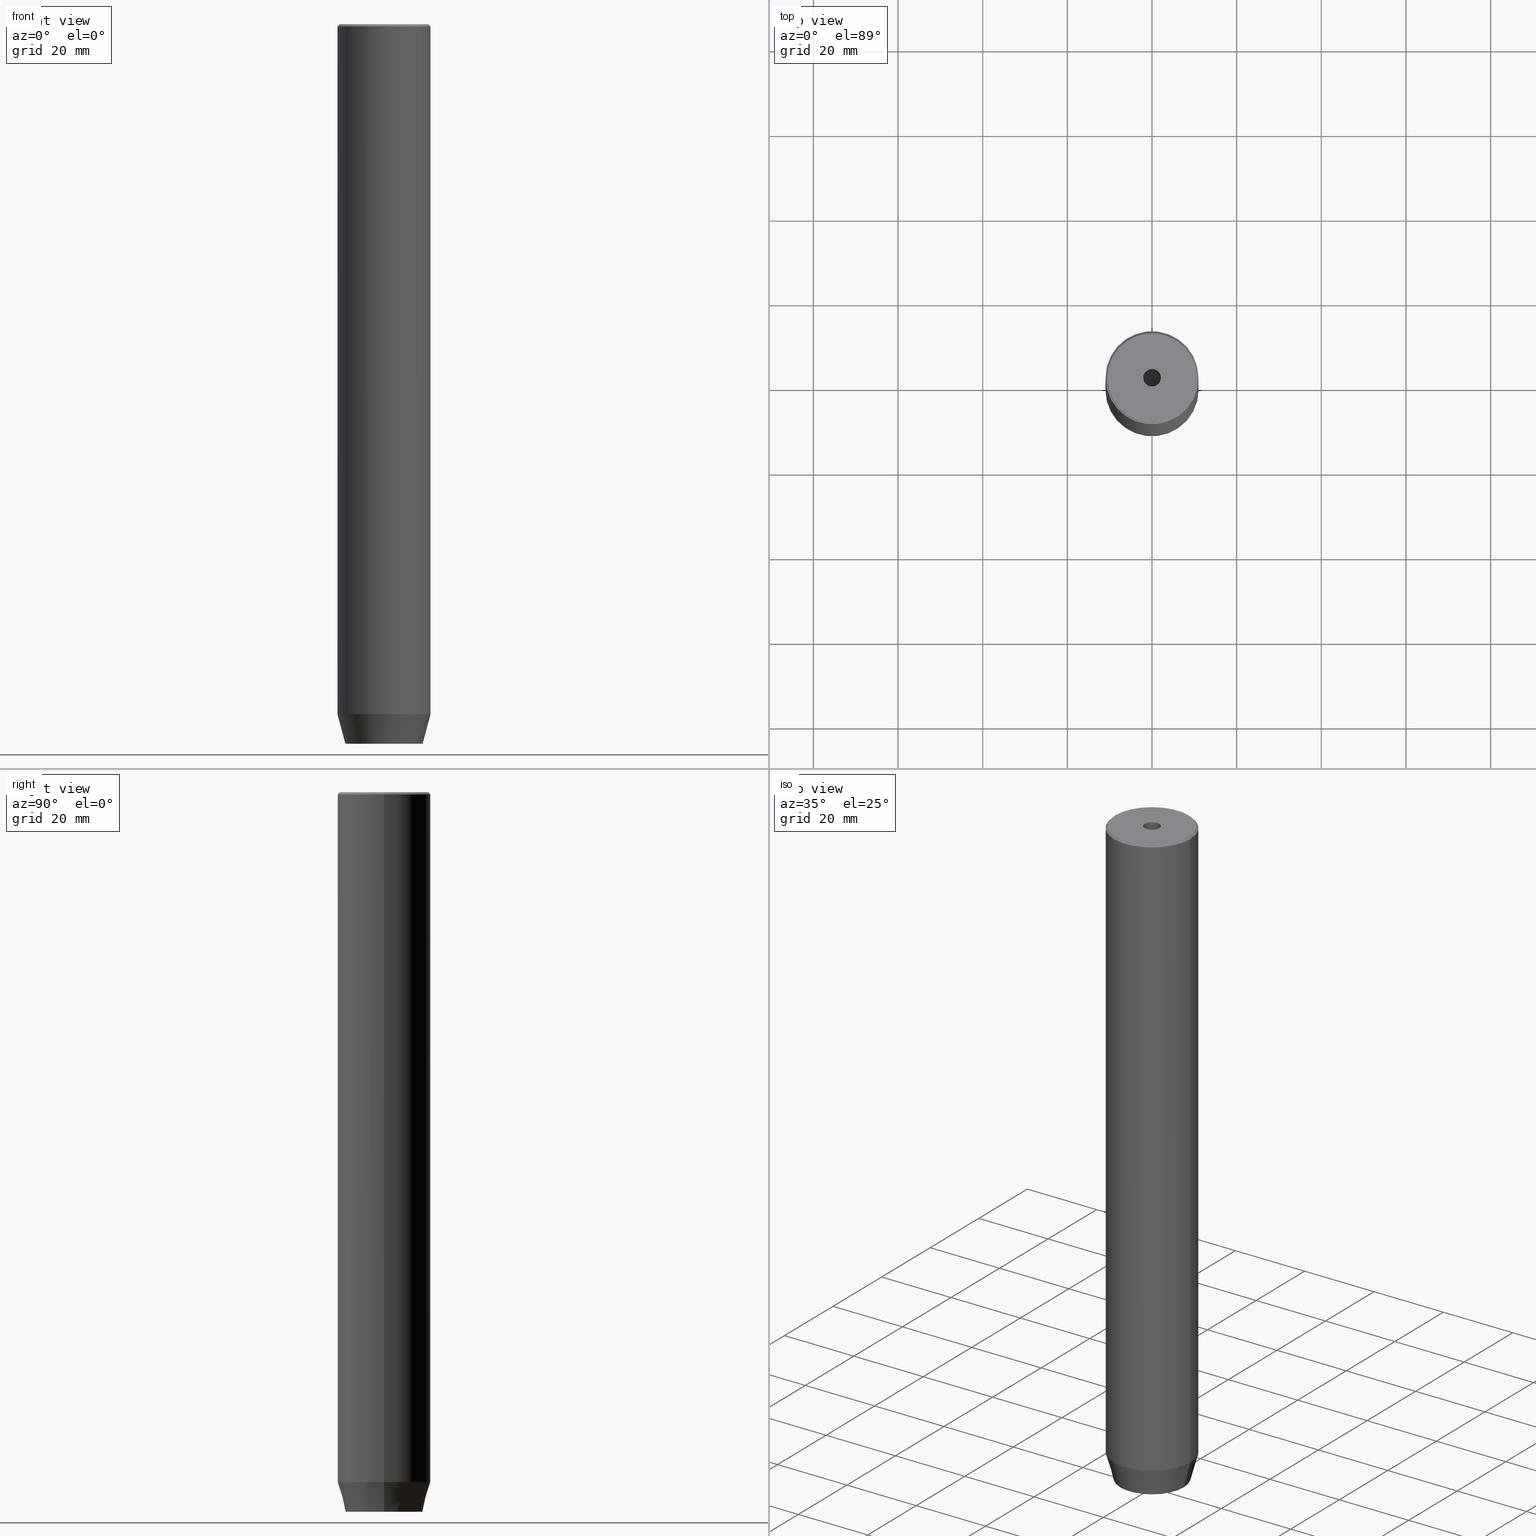
[diagram: canonical four-view strip — front | top / right | iso, engineering-drawing reading convention]
A machine part, canonical four-view strip (front | top / right | iso — engineering-drawing reading convention). The complete STEP part file that produces these views, byte-faithful:
ISO-10303-21;
HEADER;
FILE_DESCRIPTION (( 'STEP AP203' ),
    '1' );
FILE_NAME ('10cb.STEP',
    '2024-01-02T17:18:31',
    ( '' ),
    ( '' ),
    'SwSTEP 2.0',
    'SolidWorks 2019',
    '' );
FILE_SCHEMA (( 'CONFIG_CONTROL_DESIGN' ));
ENDSEC;

DATA;
#1 = ORIENTED_EDGE ( 'NONE', *, *, #455, .F. ) ;
#2 = CARTESIAN_POINT ( 'NONE',  ( 2.000000000000000888, -3.464101615137754386, -167.2000000000000171 ) ) ;
#3 = ORIENTED_EDGE ( 'NONE', *, *, #511, .F. ) ;
#4 = EDGE_CURVE ( 'NONE', #456, #358, #508, .T. ) ;
#5 = FACE_OUTER_BOUND ( 'NONE', #38, .T. ) ;
#6 = CIRCLE ( 'NONE', #297, 11.00000000000000000 ) ;
#7 = LOCAL_TIME ( 18, 18, 31.00000000000000000, #528 ) ;
#8 = DIRECTION ( 'NONE',  ( -0.000000000000000000, -0.000000000000000000, 1.000000000000000000 ) ) ;
#9 = ADVANCED_FACE ( 'NONE', ( #461 ), #48, .T. ) ;
#10 = DIRECTION ( 'NONE',  ( -0.7071067811865302533, 0.000000000000000000, -0.7071067811865647812 ) ) ;
#11 = CARTESIAN_POINT ( 'NONE',  ( 10.50000000000005151, 1.285879139104727141E-15, 0.000000000000000000 ) ) ;
#12 = DIRECTION ( 'NONE',  ( -1.000000000000000000, 0.000000000000000000, -0.000000000000000000 ) ) ;
#13 = VECTOR ( 'NONE', #416, 1000.000000000000114 ) ;
#14 = LINE ( 'NONE', #206, #128 ) ;
#15 = PRODUCT ( '10cb', '10cb', '', ( #467 ) ) ;
#16 = CARTESIAN_POINT ( 'NONE',  ( 2.168404344971008868E-16, 4.618802153517006737, -170.0000000000000000 ) ) ;
#17 = EDGE_CURVE ( 'NONE', #417, #262, #74, .T. ) ;
#18 = EDGE_LOOP ( 'NONE', ( #185, #444, #375, #453 ) ) ;
#19 = FACE_OUTER_BOUND ( 'NONE', #222, .T. ) ;
#20 = PERSON ( 'NEUR�EN�', 'NEUR�EN�', 'NEUR�EN�', ('NEUR�EN�'), ('NEUR�EN�'), ('NEUR�EN�') ) ;
#21 = PRODUCT_RELATED_PRODUCT_CATEGORY ( 'detail', '', ( #15 ) ) ;
#22 = VECTOR ( 'NONE', #236, 1000.000000000000000 ) ;
#23 = AXIS2_PLACEMENT_3D ( 'NONE', #132, #445, #497 ) ;
#24 = ORIENTED_EDGE ( 'NONE', *, *, #314, .F. ) ;
#25 = LINE ( 'NONE', #175, #311 ) ;
#26 = EDGE_CURVE ( 'NONE', #410, #312, #69, .T. ) ;
#27 = VERTEX_POINT ( 'NONE', #341 ) ;
#28 = COORDINATED_UNIVERSAL_TIME_OFFSET ( 1, 0, .AHEAD. ) ;
#29 = APPLICATION_CONTEXT ( 'configuration controlled 3d designs of mechanical parts and assemblies' ) ;
#30 = CARTESIAN_POINT ( 'NONE',  ( 2.099999999999998757, 0.000000000000000000, -1.990051048614449116E-16 ) ) ;
#31 = CARTESIAN_POINT ( 'NONE',  ( -2.099999999999995648, 2.571758278209436040E-16, -25.00000000000000000 ) ) ;
#32 = ORGANIZATION ( 'NEUR�EN�', 'NEUR�EN�', '' ) ;
#33 = FACE_OUTER_BOUND ( 'NONE', #325, .T. ) ;
#34 = ORIENTED_EDGE ( 'NONE', *, *, #409, .T. ) ;
#35 = APPROVAL_STATUS ( 'not_yet_approved' ) ;
#36 = ADVANCED_FACE ( 'NONE', ( #433 ), #333, .F. ) ;
#37 = ORIENTED_EDGE ( 'NONE', *, *, #60, .F. ) ;
#38 = EDGE_LOOP ( 'NONE', ( #400, #131, #214, #343 ) ) ;
#39 = DIRECTION ( 'NONE',  ( 1.000000000000000000, 0.000000000000000000, 0.000000000000000000 ) ) ;
#40 = VECTOR ( 'NONE', #556, 1000.000000000000000 ) ;
#41 = VERTEX_POINT ( 'NONE', #247 ) ;
#42 = LOCAL_TIME ( 18, 18, 31.00000000000000000, #293 ) ;
#43 = DIRECTION ( 'NONE',  ( -0.000000000000000000, -0.000000000000000000, 1.000000000000000000 ) ) ;
#44 = VERTEX_POINT ( 'NONE', #334 ) ;
#45 = EDGE_CURVE ( 'NONE', #277, #207, #162, .T. ) ;
#46 = CARTESIAN_POINT ( 'NONE',  ( 4.336808689942017736E-16, -4.618802153517006737, -170.0000000000000000 ) ) ;
#47 = ORIENTED_EDGE ( 'NONE', *, *, #376, .T. ) ;
#48 = PLANE ( 'NONE',  #502 ) ;
#49 = FACE_OUTER_BOUND ( 'NONE', #87, .T. ) ;
#50 = ORIENTED_EDGE ( 'NONE', *, *, #385, .T. ) ;
#51 = CIRCLE ( 'NONE', #192, 2.099999999999998757 ) ;
#52 = EDGE_CURVE ( 'NONE', #410, #487, #332, .T. ) ;
#53 = CARTESIAN_POINT ( 'NONE',  ( 0.000000000000000000, 9.124355652982126585, -170.0000000000000000 ) ) ;
#54 = DIRECTION ( 'NONE',  ( 0.000000000000000000, 0.000000000000000000, 1.000000000000000000 ) ) ;
#55 = CARTESIAN_POINT ( 'NONE',  ( 4.000000000000000000, 0.000000000000000000, -167.2000000000000171 ) ) ;
#56 = DIRECTION ( 'NONE',  ( 1.000000000000000000, 0.000000000000000000, 0.000000000000000000 ) ) ;
#57 = CARTESIAN_POINT ( 'NONE',  ( 0.000000000000000000, 0.000000000000000000, 0.000000000000000000 ) ) ;
#58 = EDGE_LOOP ( 'NONE', ( #110, #209, #362, #279, #337, #499 ) ) ;
#59 = APPLICATION_PROTOCOL_DEFINITION ( 'international standard', 'config_control_design', 1994, #264 ) ;
#60 = EDGE_CURVE ( 'NONE', #158, #190, #203, .T. ) ;
#61 = FACE_OUTER_BOUND ( 'NONE', #232, .T. ) ;
#62 = EDGE_LOOP ( 'NONE', ( #34, #432, #475, #37 ) ) ;
#63 = DIRECTION ( 'NONE',  ( 0.000000000000000000, 0.000000000000000000, -1.000000000000000000 ) ) ;
#64 = DIRECTION ( 'NONE',  ( -0.000000000000000000, -0.000000000000000000, 1.000000000000000000 ) ) ;
#65 = DIRECTION ( 'NONE',  ( -0.000000000000000000, -0.000000000000000000, -1.000000000000000000 ) ) ;
#66 = CARTESIAN_POINT ( 'NONE',  ( 2.000000000000000444, 3.464101615137754386, -167.2000000000000171 ) ) ;
#67 = VECTOR ( 'NONE', #64, 1000.000000000000000 ) ;
#68 = CC_DESIGN_DATE_AND_TIME_ASSIGNMENT ( #177, #308, ( #225 ) ) ;
#69 = CIRCLE ( 'NONE', #443, 9.124355652982126585 ) ;
#70 = AXIS2_PLACEMENT_3D ( 'NONE', #148, #329, #515 ) ;
#71 = APPROVAL ( #454, 'NEUR�EN�' ) ;
#72 = ORIENTED_EDGE ( 'NONE', *, *, #101, .F. ) ;
#73 = CARTESIAN_POINT ( 'NONE',  ( -9.124355652982126585, 1.232261386766375113E-15, -170.0000000000000000 ) ) ;
#74 = CIRCLE ( 'NONE', #178, 2.099999999999995648 ) ;
#75 = PERSON_AND_ORGANIZATION ( #20, #32 ) ;
#76 = CONICAL_SURFACE ( 'NONE', #371, 11.00000000000000000, 0.2617993877991499629 ) ;
#77 = VECTOR ( 'NONE', #267, 1000.000000000000114 ) ;
#78 = ADVANCED_FACE ( 'NONE', ( #19 ), #530, .F. ) ;
#79 = DIRECTION ( 'NONE',  ( 1.000000000000000000, 0.000000000000000000, 0.000000000000000000 ) ) ;
#80 = DIRECTION ( 'NONE',  ( -0.000000000000000000, -0.000000000000000000, 1.000000000000000000 ) ) ;
#81 = VERTEX_POINT ( 'NONE', #16 ) ;
#82 = DIRECTION ( 'NONE',  ( 1.000000000000000000, 0.000000000000000000, 0.000000000000000000 ) ) ;
#83 = ORIENTED_EDGE ( 'NONE', *, *, #356, .T. ) ;
#84 = ADVANCED_FACE ( 'NONE', ( #61 ), #478, .F. ) ;
#85 = VECTOR ( 'NONE', #539, 1000.000000000000114 ) ;
#86 = CARTESIAN_POINT ( 'NONE',  ( -2.000000000000000000, 3.464101615137754830, -170.0000000000000000 ) ) ;
#87 = EDGE_LOOP ( 'NONE', ( #126, #187, #90, #135 ) ) ;
#88 = CARTESIAN_POINT ( 'NONE',  ( -4.000000000000000000, 2.309401076758503368, -167.2000000000000171 ) ) ;
#89 = DIRECTION ( 'NONE',  ( 0.8660254037844387076, 0.5000000000000001110, 0.000000000000000000 ) ) ;
#90 = ORIENTED_EDGE ( 'NONE', *, *, #161, .T. ) ;
#91 = APPROVAL_STATUS ( 'not_yet_approved' ) ;
#92 = CARTESIAN_POINT ( 'NONE',  ( 4.336808689942017736E-16, -4.618802153517006737, -167.2000000000000171 ) ) ;
#93 = VERTEX_POINT ( 'NONE', #159 ) ;
#94 = DIRECTION ( 'NONE',  ( -0.8660254037844384856, 0.5000000000000002220, 0.000000000000000000 ) ) ;
#95 = PERSON_AND_ORGANIZATION_ROLE ( 'creator' ) ;
#96 = VECTOR ( 'NONE', #513, 1000.000000000000000 ) ;
#97 = DIRECTION ( 'NONE',  ( -0.000000000000000000, -0.000000000000000000, 1.000000000000000000 ) ) ;
#98 = ORIENTED_EDGE ( 'NONE', *, *, #122, .F. ) ;
#99 = ORIENTED_EDGE ( 'NONE', *, *, #320, .F. ) ;
#100 = DIRECTION ( 'NONE',  ( 0.8660254037844385966, -0.5000000000000001110, 0.000000000000000000 ) ) ;
#101 = EDGE_CURVE ( 'NONE', #235, #27, #252, .T. ) ;
#102 = CARTESIAN_POINT ( 'NONE',  ( -4.000000000000000000, -2.309401076758503368, -167.2000000000000171 ) ) ;
#103 = DIRECTION ( 'NONE',  ( 0.000000000000000000, -0.000000000000000000, 1.000000000000000000 ) ) ;
#104 = CLOSED_SHELL ( 'NONE', ( #84, #265, #486, #147, #469, #563, #112, #213, #427, #538, #155, #78, #390, #464, #36, #398, #9, #446, #245 ) ) ;
#105 = CIRCLE ( 'NONE', #447, 2.099999999999998757 ) ;
#106 = ORIENTED_EDGE ( 'NONE', *, *, #52, .F. ) ;
#107 = DIRECTION ( 'NONE',  ( -0.000000000000000000, -0.000000000000000000, 1.000000000000000000 ) ) ;
#108 = ORIENTED_EDGE ( 'NONE', *, *, #17, .F. ) ;
#109 = DIRECTION ( 'NONE',  ( -0.000000000000000000, -0.000000000000000000, 1.000000000000000000 ) ) ;
#110 = ORIENTED_EDGE ( 'NONE', *, *, #300, .T. ) ;
#111 = DIRECTION ( 'NONE',  ( -1.000000000000000000, 0.000000000000000000, 0.000000000000000000 ) ) ;
#112 = ADVANCED_FACE ( 'NONE', ( #302, #477 ), #518, .T. ) ;
#113 = EDGE_LOOP ( 'NONE', ( #106, #323, #315, #283 ) ) ;
#114 = AXIS2_PLACEMENT_3D ( 'NONE', #379, #111, #522 ) ;
#115 = VECTOR ( 'NONE', #230, 1000.000000000000000 ) ;
#116 = CARTESIAN_POINT ( 'NONE',  ( 11.00000000000000000, 0.000000000000000000, -162.9999999999999716 ) ) ;
#117 = CC_DESIGN_APPROVAL ( #290, ( #225 ) ) ;
#118 = PERSON_AND_ORGANIZATION_ROLE ( 'classification_officer' ) ;
#119 = DIRECTION ( 'NONE',  ( 1.000000000000000000, 0.000000000000000000, 0.000000000000000000 ) ) ;
#120 = PERSON_AND_ORGANIZATION ( #20, #32 ) ;
#121 = LINE ( 'NONE', #268, #241 ) ;
#122 = EDGE_CURVE ( 'NONE', #417, #93, #566, .T. ) ;
#123 = CARTESIAN_POINT ( 'NONE',  ( 10.50000000000005151, 1.316495309083407773E-15, 0.000000000000000000 ) ) ;
#124 = CARTESIAN_POINT ( 'NONE',  ( 0.000000000000000000, 0.000000000000000000, -162.9999999999999716 ) ) ;
#125 = CARTESIAN_POINT ( 'NONE',  ( -6.432287649943602629E-15, 0.000000000000000000, -26.26180729995787999 ) ) ;
#126 = ORIENTED_EDGE ( 'NONE', *, *, #573, .F. ) ;
#127 = CARTESIAN_POINT ( 'NONE',  ( -4.000000000000000000, -2.309401076758503368, -170.0000000000000000 ) ) ;
#128 = VECTOR ( 'NONE', #10, 1000.000000000000114 ) ;
#129 = PERSON_AND_ORGANIZATION ( #20, #32 ) ;
#130 = CARTESIAN_POINT ( 'NONE',  ( 0.000000000000000000, 0.000000000000000000, -0.4999999999999726885 ) ) ;
#131 = ORIENTED_EDGE ( 'NONE', *, *, #573, .T. ) ;
#132 = CARTESIAN_POINT ( 'NONE',  ( 0.000000000000000000, 0.000000000000000000, 0.000000000000000000 ) ) ;
#133 = EDGE_CURVE ( 'NONE', #235, #81, #470, .T. ) ;
#134 = FACE_OUTER_BOUND ( 'NONE', #211, .T. ) ;
#135 = ORIENTED_EDGE ( 'NONE', *, *, #420, .F. ) ;
#136 = PLANE ( 'NONE',  #426 ) ;
#137 = CARTESIAN_POINT ( 'NONE',  ( 0.000000000000000000, 0.000000000000000000, 0.000000000000000000 ) ) ;
#138 = ORIENTED_EDGE ( 'NONE', *, *, #385, .F. ) ;
#139 = DIRECTION ( 'NONE',  ( -0.000000000000000000, -0.000000000000000000, 1.000000000000000000 ) ) ;
#140 = VECTOR ( 'NONE', #355, 1000.000000000000114 ) ;
#141 = CIRCLE ( 'NONE', #536, 10.50000000000005151 ) ;
#142 = CARTESIAN_POINT ( 'NONE',  ( 4.000000000000000000, 2.309401076758503368, -170.0000000000000000 ) ) ;
#143 = ORIENTED_EDGE ( 'NONE', *, *, #284, .F. ) ;
#144 = COORDINATED_UNIVERSAL_TIME_OFFSET ( 1, 0, .AHEAD. ) ;
#145 = ORIENTED_EDGE ( 'NONE', *, *, #434, .F. ) ;
#146 = CARTESIAN_POINT ( 'NONE',  ( -10.50000000000005151, 0.000000000000000000, 0.000000000000000000 ) ) ;
#147 = ADVANCED_FACE ( 'NONE', ( #257 ), #574, .T. ) ;
#148 = CARTESIAN_POINT ( 'NONE',  ( 0.000000000000000000, 0.000000000000000000, -25.00000000000000000 ) ) ;
#149 = DIRECTION ( 'NONE',  ( 1.000000000000000000, 0.000000000000000000, 0.000000000000000000 ) ) ;
#150 = CIRCLE ( 'NONE', #202, 11.00000000000000000 ) ;
#151 = CARTESIAN_POINT ( 'NONE',  ( 2.000000000000000444, 3.464101615137754386, -167.2000000000000171 ) ) ;
#152 = CIRCLE ( 'NONE', #227, 10.50000000000005151 ) ;
#153 = ORIENTED_EDGE ( 'NONE', *, *, #529, .F. ) ;
#154 = DIRECTION ( 'NONE',  ( 1.000000000000000000, 0.000000000000000000, 0.000000000000000000 ) ) ;
#155 = ADVANCED_FACE ( 'NONE', ( #428 ), #254, .F. ) ;
#156 = DIRECTION ( 'NONE',  ( -0.000000000000000000, -0.000000000000000000, 1.000000000000000000 ) ) ;
#157 = ORIENTED_EDGE ( 'NONE', *, *, #314, .T. ) ;
#158 = VERTEX_POINT ( 'NONE', #301 ) ;
#159 = CARTESIAN_POINT ( 'NONE',  ( -2.099999999999998757, 2.571758278209440478E-16, -1.990051048614449116E-16 ) ) ;
#160 = CONICAL_SURFACE ( 'NONE', #281, 2.099999999999995648, 1.029744258676651647 ) ;
#161 = EDGE_CURVE ( 'NONE', #233, #41, #14, .T. ) ;
#162 = LINE ( 'NONE', #564, #271 ) ;
#163 = ORIENTED_EDGE ( 'NONE', *, *, #4, .F. ) ;
#164 = ORIENTED_EDGE ( 'NONE', *, *, #4, .T. ) ;
#165 = CARTESIAN_POINT ( 'NONE',  ( 11.00000000000000000, 0.000000000000000000, -0.4999999999999726885 ) ) ;
#166 = DIRECTION ( 'NONE',  ( 0.5000000000000001110, 0.8660254037844385966, -0.000000000000000000 ) ) ;
#167 = CARTESIAN_POINT ( 'NONE',  ( 0.000000000000000000, 0.000000000000000000, -1.990051048614449116E-16 ) ) ;
#168 = CONICAL_SURFACE ( 'NONE', #490, 10.50000000000005151, 0.7853981633974239651 ) ;
#169 = DIRECTION ( 'NONE',  ( -0.8660254037844384856, -0.5000000000000002220, 0.000000000000000000 ) ) ;
#170 = DIRECTION ( 'NONE',  ( 0.000000000000000000, 0.000000000000000000, -1.000000000000000000 ) ) ;
#171 = EDGE_CURVE ( 'NONE', #27, #44, #199, .T. ) ;
#172 = DIRECTION ( 'NONE',  ( 1.000000000000000000, 0.000000000000000000, 0.000000000000000000 ) ) ;
#173 = DIRECTION ( 'NONE',  ( 1.000000000000000000, 0.000000000000000000, 0.000000000000000000 ) ) ;
#174 = ORIENTED_EDGE ( 'NONE', *, *, #45, .T. ) ;
#175 = CARTESIAN_POINT ( 'NONE',  ( -4.000000000000000000, 2.309401076758503368, -167.2000000000000171 ) ) ;
#176 = EDGE_LOOP ( 'NONE', ( #393, #350 ) ) ;
#177 = DATE_AND_TIME ( #346, #7 ) ;
#178 = AXIS2_PLACEMENT_3D ( 'NONE', #382, #570, #292 ) ;
#179 = SECURITY_CLASSIFICATION_LEVEL ( 'unclassified' ) ;
#180 = VECTOR ( 'NONE', #89, 999.9999999999998863 ) ;
#181 = CC_DESIGN_PERSON_AND_ORGANIZATION_ASSIGNMENT ( #327, #95, ( #225 ) ) ;
#182 = CARTESIAN_POINT ( 'NONE',  ( -11.00000000000000000, 1.347111479062088405E-15, 0.000000000000000000 ) ) ;
#183 = APPROVAL_ROLE ( '' ) ;
#184 = ADVANCED_BREP_SHAPE_REPRESENTATION ( '10cb', ( #353, #228 ), #322 ) ;
#185 = ORIENTED_EDGE ( 'NONE', *, *, #237, .T. ) ;
#186 = CARTESIAN_POINT ( 'NONE',  ( 0.000000000000000000, 0.000000000000000000, -25.00000000000000000 ) ) ;
#187 = ORIENTED_EDGE ( 'NONE', *, *, #519, .F. ) ;
#188 = DATE_AND_TIME ( #500, #289 ) ;
#189 = CARTESIAN_POINT ( 'NONE',  ( -11.00000000000000000, 1.347111479062088405E-15, -162.9999999999999716 ) ) ;
#190 = VERTEX_POINT ( 'NONE', #165 ) ;
#191 = LINE ( 'NONE', #507, #535 ) ;
#192 = AXIS2_PLACEMENT_3D ( 'NONE', #336, #109, #263 ) ;
#193 = ORIENTED_EDGE ( 'NONE', *, *, #60, .T. ) ;
#194 = FACE_OUTER_BOUND ( 'NONE', #18, .T. ) ;
#195 = EDGE_CURVE ( 'NONE', #93, #577, #51, .T. ) ;
#196 = DATE_AND_TIME ( #242, #482 ) ;
#197 = CC_DESIGN_PERSON_AND_ORGANIZATION_ASSIGNMENT ( #129, #118, ( #299 ) ) ;
#198 = DIRECTION ( 'NONE',  ( -0.5000000000000000000, 0.8660254037844387076, 0.000000000000000000 ) ) ;
#199 = LINE ( 'NONE', #485, #473 ) ;
#200 = AXIS2_PLACEMENT_3D ( 'NONE', #55, #468, #210 ) ;
#201 = EDGE_CURVE ( 'NONE', #487, #158, #150, .T. ) ;
#202 = AXIS2_PLACEMENT_3D ( 'NONE', #523, #399, #357 ) ;
#203 = LINE ( 'NONE', #388, #67 ) ;
#204 = APPROVAL_PERSON_ORGANIZATION ( #120, #71, #183 ) ;
#205 = DIRECTION ( 'NONE',  ( -0.000000000000000000, -0.000000000000000000, -1.000000000000000000 ) ) ;
#206 = CARTESIAN_POINT ( 'NONE',  ( -10.50000000000005151, 0.000000000000000000, 0.000000000000000000 ) ) ;
#207 = VERTEX_POINT ( 'NONE', #275 ) ;
#208 = DIRECTION ( 'NONE',  ( 1.000000000000000000, 0.000000000000000000, 0.000000000000000000 ) ) ;
#209 = ORIENTED_EDGE ( 'NONE', *, *, #101, .T. ) ;
#210 = DIRECTION ( 'NONE',  ( -0.000000000000000000, 0.000000000000000000, -1.000000000000000000 ) ) ;
#211 = EDGE_LOOP ( 'NONE', ( #83, #145, #250, #335 ) ) ;
#212 = AXIS2_PLACEMENT_3D ( 'NONE', #130, #496, #39 ) ;
#213 = ADVANCED_FACE ( 'NONE', ( #364 ), #309, .T. ) ;
#214 = ORIENTED_EDGE ( 'NONE', *, *, #255, .F. ) ;
#215 = DIRECTION ( 'NONE',  ( -0.000000000000000000, -0.000000000000000000, 1.000000000000000000 ) ) ;
#216 = ORIENTED_EDGE ( 'NONE', *, *, #17, .T. ) ;
#217 = LINE ( 'NONE', #394, #552 ) ;
#218 = EDGE_LOOP ( 'NONE', ( #551, #138, #72, #374 ) ) ;
#219 = CARTESIAN_POINT ( 'NONE',  ( 0.000000000000000000, 0.000000000000000000, -162.9999999999999716 ) ) ;
#220 = EDGE_CURVE ( 'NONE', #81, #456, #270, .T. ) ;
#221 = CONICAL_SURFACE ( 'NONE', #418, 2.099999999999995648, 1.029744258676651647 ) ;
#222 = EDGE_LOOP ( 'NONE', ( #174, #266, #143, #441 ) ) ;
#223 = APPROVAL_ROLE ( '' ) ;
#224 = VERTEX_POINT ( 'NONE', #123 ) ;
#225 = PRODUCT_DEFINITION ( 'NEZN�M�', '', #554, #449 ) ;
#226 = LINE ( 'NONE', #514, #331 ) ;
#227 = AXIS2_PLACEMENT_3D ( 'NONE', #369, #452, #324 ) ;
#228 = AXIS2_PLACEMENT_3D ( 'NONE', #377, #54, #56 ) ;
#229 = ORIENTED_EDGE ( 'NONE', *, *, #494, .T. ) ;
#230 = DIRECTION ( 'NONE',  ( 0.8660254037844385966, -0.5000000000000001110, 0.000000000000000000 ) ) ;
#231 = DIRECTION ( 'NONE',  ( 1.000000000000000000, 0.000000000000000000, 0.000000000000000000 ) ) ;
#232 = EDGE_LOOP ( 'NONE', ( #108, #317, #546, #537 ) ) ;
#233 = VERTEX_POINT ( 'NONE', #146 ) ;
#234 = CYLINDRICAL_SURFACE ( 'NONE', #481, 11.00000000000000000 ) ;
#235 = VERTEX_POINT ( 'NONE', #451 ) ;
#236 = DIRECTION ( 'NONE',  ( 0.000000000000000000, -1.000000000000000000, 0.000000000000000000 ) ) ;
#237 = EDGE_CURVE ( 'NONE', #439, #277, #226, .T. ) ;
#238 = DIRECTION ( 'NONE',  ( -1.000000000000000000, 0.000000000000000000, 0.000000000000000000 ) ) ;
#239 = ORIENTED_EDGE ( 'NONE', *, *, #195, .F. ) ;
#240 = VECTOR ( 'NONE', #100, 1000.000000000000000 ) ;
#241 = VECTOR ( 'NONE', #310, 999.9999999999998863 ) ;
#242 = CALENDAR_DATE ( 2024, 2, 1 ) ;
#243 = FACE_OUTER_BOUND ( 'NONE', #363, .T. ) ;
#244 = CARTESIAN_POINT ( 'NONE',  ( 0.000000000000000000, 0.000000000000000000, -0.4999999999999726885 ) ) ;
#245 = ADVANCED_FACE ( 'NONE', ( #403 ), #360, .F. ) ;
#246 = LINE ( 'NONE', #102, #408 ) ;
#247 = CARTESIAN_POINT ( 'NONE',  ( -11.00000000000000000, 1.347111479062088405E-15, -0.4999999999999726885 ) ) ;
#248 = VECTOR ( 'NONE', #501, 1000.000000000000000 ) ;
#249 = CARTESIAN_POINT ( 'NONE',  ( 0.000000000000000000, 4.618802153517006737, -167.2000000000000171 ) ) ;
#250 = ORIENTED_EDGE ( 'NONE', *, *, #543, .F. ) ;
#251 = LOCAL_TIME ( 18, 18, 31.00000000000000000, #28 ) ;
#252 = LINE ( 'NONE', #151, #240 ) ;
#253 = DIRECTION ( 'NONE',  ( -1.000000000000000000, 0.000000000000000000, -0.000000000000000000 ) ) ;
#254 = PLANE ( 'NONE',  #565 ) ;
#255 = EDGE_CURVE ( 'NONE', #41, #190, #466, .T. ) ;
#256 = CARTESIAN_POINT ( 'NONE',  ( 0.000000000000000000, 0.000000000000000000, -170.0000000000000000 ) ) ;
#257 = FACE_OUTER_BOUND ( 'NONE', #545, .T. ) ;
#258 = DIRECTION ( 'NONE',  ( 0.000000000000000000, -1.000000000000000000, 0.000000000000000000 ) ) ;
#259 = AXIS2_PLACEMENT_3D ( 'NONE', #313, #80, #173 ) ;
#260 = CC_DESIGN_APPROVAL ( #71, ( #554 ) ) ;
#261 = CARTESIAN_POINT ( 'NONE',  ( 9.124355652982126585, 0.000000000000000000, -170.0000000000000000 ) ) ;
#262 = VERTEX_POINT ( 'NONE', #352 ) ;
#263 = DIRECTION ( 'NONE',  ( 1.000000000000000000, 0.000000000000000000, 0.000000000000000000 ) ) ;
#264 = APPLICATION_CONTEXT ( 'configuration controlled 3d designs of mechanical parts and assemblies' ) ;
#265 = ADVANCED_FACE ( 'NONE', ( #33 ), #221, .F. ) ;
#266 = ORIENTED_EDGE ( 'NONE', *, *, #306, .F. ) ;
#267 = DIRECTION ( 'NONE',  ( 0.7071067811865302533, 8.659560562354723317E-17, -0.7071067811865647812 ) ) ;
#268 = CARTESIAN_POINT ( 'NONE',  ( -2.000000000000000000, 3.464101615137754830, -167.2000000000000171 ) ) ;
#269 = CALENDAR_DATE ( 2024, 2, 1 ) ;
#270 = LINE ( 'NONE', #541, #115 ) ;
#271 = VECTOR ( 'NONE', #521, 1000.000000000000000 ) ;
#272 = AXIS2_PLACEMENT_3D ( 'NONE', #474, #386, #339 ) ;
#273 = EDGE_CURVE ( 'NONE', #577, #93, #105, .T. ) ;
#274 = ORIENTED_EDGE ( 'NONE', *, *, #409, .F. ) ;
#275 = CARTESIAN_POINT ( 'NONE',  ( -4.000000000000000000, 2.309401076758503368, -170.0000000000000000 ) ) ;
#276 = DIRECTION ( 'NONE',  ( -1.000000000000000000, 0.000000000000000000, 0.000000000000000000 ) ) ;
#277 = VERTEX_POINT ( 'NONE', #127 ) ;
#278 = CARTESIAN_POINT ( 'NONE',  ( 2.099999999999996980, 0.000000000000000000, 0.000000000000000000 ) ) ;
#279 = ORIENTED_EDGE ( 'NONE', *, *, #543, .T. ) ;
#280 = APPROVAL_DATE_TIME ( #188, #71 ) ;
#281 = AXIS2_PLACEMENT_3D ( 'NONE', #186, #43, #231 ) ;
#282 = DIRECTION ( 'NONE',  ( 0.8660254037844384856, 0.5000000000000002220, 0.000000000000000000 ) ) ;
#283 = ORIENTED_EDGE ( 'NONE', *, *, #201, .F. ) ;
#284 = EDGE_CURVE ( 'NONE', #383, #424, #480, .T. ) ;
#285 = CARTESIAN_POINT ( 'NONE',  ( 4.000000000000000000, 0.000000000000000000, -170.0000000000000000 ) ) ;
#286 = CARTESIAN_POINT ( 'NONE',  ( 2.000000000000000888, -3.464101615137754386, -167.2000000000000171 ) ) ;
#287 = ORIENTED_EDGE ( 'NONE', *, *, #201, .T. ) ;
#288 = AXIS2_PLACEMENT_3D ( 'NONE', #286, #419, #282 ) ;
#289 = LOCAL_TIME ( 18, 18, 31.00000000000000000, #318 ) ;
#290 = APPROVAL ( #91, 'NEUR�EN�' ) ;
#291 =( NAMED_UNIT ( * ) PLANE_ANGLE_UNIT ( ) SI_UNIT ( $, .RADIAN. ) );
#292 = DIRECTION ( 'NONE',  ( 1.000000000000000000, 0.000000000000000000, 0.000000000000000000 ) ) ;
#293 = COORDINATED_UNIVERSAL_TIME_OFFSET ( 1, 0, .AHEAD. ) ;
#294 = CARTESIAN_POINT ( 'NONE',  ( 0.000000000000000000, 0.000000000000000000, 0.000000000000000000 ) ) ;
#295 = DIRECTION ( 'NONE',  ( -0.5000000000000003331, -0.8660254037844385966, 0.000000000000000000 ) ) ;
#296 = PERSON_AND_ORGANIZATION ( #20, #32 ) ;
#297 = AXIS2_PLACEMENT_3D ( 'NONE', #219, #344, #119 ) ;
#298 = DIRECTION ( 'NONE',  ( 0.000000000000000000, 0.000000000000000000, -1.000000000000000000 ) ) ;
#299 = SECURITY_CLASSIFICATION ( '', '', #179 ) ;
#300 = EDGE_CURVE ( 'NONE', #424, #235, #121, .T. ) ;
#301 = CARTESIAN_POINT ( 'NONE',  ( 11.00000000000000000, 0.000000000000000000, -162.9999999999999716 ) ) ;
#302 = FACE_BOUND ( 'NONE', #492, .T. ) ;
#303 = FACE_OUTER_BOUND ( 'NONE', #218, .T. ) ;
#304 = ORIENTED_EDGE ( 'NONE', *, *, #338, .F. ) ;
#305 = AXIS2_PLACEMENT_3D ( 'NONE', #244, #170, #82 ) ;
#306 = EDGE_CURVE ( 'NONE', #424, #207, #25, .T. ) ;
#307 = LINE ( 'NONE', #351, #85 ) ;
#308 = DATE_TIME_ROLE ( 'creation_date' ) ;
#309 = CYLINDRICAL_SURFACE ( 'NONE', #259, 11.00000000000000000 ) ;
#310 = DIRECTION ( 'NONE',  ( 0.8660254037844387076, 0.5000000000000001110, 0.000000000000000000 ) ) ;
#311 = VECTOR ( 'NONE', #347, 1000.000000000000000 ) ;
#312 = VERTEX_POINT ( 'NONE', #261 ) ;
#313 = CARTESIAN_POINT ( 'NONE',  ( 0.000000000000000000, 0.000000000000000000, 0.000000000000000000 ) ) ;
#314 = EDGE_CURVE ( 'NONE', #578, #262, #392, .T. ) ;
#315 = ORIENTED_EDGE ( 'NONE', *, *, #320, .T. ) ;
#316 = EDGE_LOOP ( 'NONE', ( #495, #326 ) ) ;
#317 = ORIENTED_EDGE ( 'NONE', *, *, #122, .T. ) ;
#318 = COORDINATED_UNIVERSAL_TIME_OFFSET ( 1, 0, .AHEAD. ) ;
#319 = ORIENTED_EDGE ( 'NONE', *, *, #494, .F. ) ;
#320 = EDGE_CURVE ( 'NONE', #312, #158, #533, .T. ) ;
#321 = VECTOR ( 'NONE', #65, 1000.000000000000000 ) ;
#322 =( GEOMETRIC_REPRESENTATION_CONTEXT ( 3 ) GLOBAL_UNCERTAINTY_ASSIGNED_CONTEXT ( ( #540 ) ) GLOBAL_UNIT_ASSIGNED_CONTEXT ( ( #520, #291, #422 ) ) REPRESENTATION_CONTEXT ( 'NONE', 'WORKASPACE' ) );
#323 = ORIENTED_EDGE ( 'NONE', *, *, #26, .T. ) ;
#324 = DIRECTION ( 'NONE',  ( 1.000000000000000000, 0.000000000000000000, 0.000000000000000000 ) ) ;
#325 = EDGE_LOOP ( 'NONE', ( #24, #586, #216 ) ) ;
#326 = ORIENTED_EDGE ( 'NONE', *, *, #26, .F. ) ;
#327 = PERSON_AND_ORGANIZATION ( #20, #32 ) ;
#328 = CC_DESIGN_PERSON_AND_ORGANIZATION_ASSIGNMENT ( #296, #512, ( #15 ) ) ;
#329 = DIRECTION ( 'NONE',  ( -0.000000000000000000, -0.000000000000000000, 1.000000000000000000 ) ) ;
#330 = FACE_BOUND ( 'NONE', #370, .T. ) ;
#331 = VECTOR ( 'NONE', #94, 1000.000000000000114 ) ;
#332 = LINE ( 'NONE', #423, #395 ) ;
#333 = PLANE ( 'NONE',  #200 ) ;
#334 = CARTESIAN_POINT ( 'NONE',  ( 4.000000000000000000, -2.309401076758502480, -167.2000000000000171 ) ) ;
#335 = ORIENTED_EDGE ( 'NONE', *, *, #455, .T. ) ;
#336 = CARTESIAN_POINT ( 'NONE',  ( 0.000000000000000000, 0.000000000000000000, -1.990051048614449116E-16 ) ) ;
#337 = ORIENTED_EDGE ( 'NONE', *, *, #365, .T. ) ;
#338 = EDGE_CURVE ( 'NONE', #578, #417, #307, .T. ) ;
#339 = DIRECTION ( 'NONE',  ( 1.000000000000000000, 0.000000000000000000, 0.000000000000000000 ) ) ;
#340 = CC_DESIGN_PERSON_AND_ORGANIZATION_ASSIGNMENT ( #384, #571, ( #554 ) ) ;
#341 = CARTESIAN_POINT ( 'NONE',  ( 4.000000000000000000, 2.309401076758503368, -167.2000000000000171 ) ) ;
#342 = EDGE_LOOP ( 'NONE', ( #153, #287, #193, #576 ) ) ;
#343 = ORIENTED_EDGE ( 'NONE', *, *, #161, .F. ) ;
#344 = DIRECTION ( 'NONE',  ( -0.000000000000000000, -0.000000000000000000, 1.000000000000000000 ) ) ;
#345 = EDGE_CURVE ( 'NONE', #312, #410, #435, .T. ) ;
#346 = CALENDAR_DATE ( 2024, 2, 1 ) ;
#347 = DIRECTION ( 'NONE',  ( -0.000000000000000000, -0.000000000000000000, -1.000000000000000000 ) ) ;
#348 = VECTOR ( 'NONE', #462, 1000.000000000000000 ) ;
#349 = AXIS2_PLACEMENT_3D ( 'NONE', #458, #366, #238 ) ;
#350 = ORIENTED_EDGE ( 'NONE', *, *, #557, .T. ) ;
#351 = CARTESIAN_POINT ( 'NONE',  ( -2.099999999999995648, 2.571758278209436040E-16, -25.00000000000000000 ) ) ;
#352 = CARTESIAN_POINT ( 'NONE',  ( 2.099999999999995648, 0.000000000000000000, -25.00000000000000000 ) ) ;
#353 = MANIFOLD_SOLID_BREP ( 'Vrt�k z�vitn�ku pro M5 z�vit1', #104 ) ;
#354 = ORIENTED_EDGE ( 'NONE', *, *, #511, .T. ) ;
#355 = DIRECTION ( 'NONE',  ( 0.8571673007021108903, 0.000000000000000000, 0.5150380749100565980 ) ) ;
#356 = EDGE_CURVE ( 'NONE', #358, #439, #217, .T. ) ;
#357 = DIRECTION ( 'NONE',  ( 1.000000000000000000, 0.000000000000000000, 0.000000000000000000 ) ) ;
#358 = VERTEX_POINT ( 'NONE', #368 ) ;
#359 = PLANE ( 'NONE',  #380 ) ;
#360 = CYLINDRICAL_SURFACE ( 'NONE', #23, 2.099999999999996980 ) ;
#361 = FACE_OUTER_BOUND ( 'NONE', #62, .T. ) ;
#362 = ORIENTED_EDGE ( 'NONE', *, *, #171, .T. ) ;
#363 = EDGE_LOOP ( 'NONE', ( #304, #157, #354 ) ) ;
#364 = FACE_OUTER_BOUND ( 'NONE', #342, .T. ) ;
#365 = EDGE_CURVE ( 'NONE', #472, #383, #191, .T. ) ;
#366 = DIRECTION ( 'NONE',  ( 0.000000000000000000, 0.000000000000000000, -1.000000000000000000 ) ) ;
#367 = ORIENTED_EDGE ( 'NONE', *, *, #52, .T. ) ;
#368 = CARTESIAN_POINT ( 'NONE',  ( 4.000000000000000000, -2.309401076758502480, -170.0000000000000000 ) ) ;
#369 = CARTESIAN_POINT ( 'NONE',  ( 0.000000000000000000, 0.000000000000000000, 0.000000000000000000 ) ) ;
#370 = EDGE_LOOP ( 'NONE', ( #319, #526, #559, #476, #163, #568 ) ) ;
#371 = AXIS2_PLACEMENT_3D ( 'NONE', #124, #583, #79 ) ;
#372 = APPROVAL_PERSON_ORGANIZATION ( #75, #402, #223 ) ;
#373 = PERSON_AND_ORGANIZATION ( #20, #32 ) ;
#374 = ORIENTED_EDGE ( 'NONE', *, *, #133, .T. ) ;
#375 = ORIENTED_EDGE ( 'NONE', *, *, #365, .F. ) ;
#376 = EDGE_CURVE ( 'NONE', #262, #577, #550, .T. ) ;
#377 = CARTESIAN_POINT ( 'NONE',  ( 0.000000000000000000, 0.000000000000000000, 0.000000000000000000 ) ) ;
#378 = DIRECTION ( 'NONE',  ( 0.000000000000000000, 0.000000000000000000, -1.000000000000000000 ) ) ;
#379 = CARTESIAN_POINT ( 'NONE',  ( -4.000000000000000000, 0.000000000000000000, -167.2000000000000171 ) ) ;
#380 = AXIS2_PLACEMENT_3D ( 'NONE', #401, #295, #471 ) ;
#381 = DIRECTION ( 'NONE',  ( 1.000000000000000000, 0.000000000000000000, 0.000000000000000000 ) ) ;
#382 = CARTESIAN_POINT ( 'NONE',  ( 0.000000000000000000, 0.000000000000000000, -25.00000000000000000 ) ) ;
#383 = VERTEX_POINT ( 'NONE', #463 ) ;
#384 = PERSON_AND_ORGANIZATION ( #20, #32 ) ;
#385 = EDGE_CURVE ( 'NONE', #27, #456, #450, .T. ) ;
#386 = DIRECTION ( 'NONE',  ( -0.000000000000000000, -0.000000000000000000, 1.000000000000000000 ) ) ;
#387 = LINE ( 'NONE', #11, #77 ) ;
#388 = CARTESIAN_POINT ( 'NONE',  ( 11.00000000000000000, 0.000000000000000000, 0.000000000000000000 ) ) ;
#389 = ORIENTED_EDGE ( 'NONE', *, *, #133, .F. ) ;
#390 = ADVANCED_FACE ( 'NONE', ( #194 ), #359, .F. ) ;
#391 = PERSON_AND_ORGANIZATION ( #20, #32 ) ;
#392 = LINE ( 'NONE', #488, #140 ) ;
#393 = ORIENTED_EDGE ( 'NONE', *, *, #519, .T. ) ;
#394 = CARTESIAN_POINT ( 'NONE',  ( 2.000000000000000888, -3.464101615137754386, -170.0000000000000000 ) ) ;
#395 = VECTOR ( 'NONE', #572, 1000.000000000000114 ) ;
#396 = VECTOR ( 'NONE', #493, 1000.000000000000000 ) ;
#397 = CARTESIAN_POINT ( 'NONE',  ( 0.000000000000000000, 0.000000000000000000, -25.00000000000000000 ) ) ;
#398 = ADVANCED_FACE ( 'NONE', ( #303 ), #479, .F. ) ;
#399 = DIRECTION ( 'NONE',  ( -0.000000000000000000, -0.000000000000000000, 1.000000000000000000 ) ) ;
#400 = ORIENTED_EDGE ( 'NONE', *, *, #557, .F. ) ;
#401 = CARTESIAN_POINT ( 'NONE',  ( -2.000000000000000888, -3.464101615137754386, -167.2000000000000171 ) ) ;
#402 = APPROVAL ( #35, 'NEUR�EN�' ) ;
#403 = FACE_OUTER_BOUND ( 'NONE', #542, .T. ) ;
#404 = AXIS2_PLACEMENT_3D ( 'NONE', #256, #484, #440 ) ;
#405 = LINE ( 'NONE', #465, #544 ) ;
#406 = CIRCLE ( 'NONE', #212, 11.00000000000000000 ) ;
#407 = CARTESIAN_POINT ( 'NONE',  ( 4.000000000000000000, 2.309401076758503368, -167.2000000000000171 ) ) ;
#408 = VECTOR ( 'NONE', #205, 1000.000000000000000 ) ;
#409 = EDGE_CURVE ( 'NONE', #158, #487, #6, .T. ) ;
#410 = VERTEX_POINT ( 'NONE', #73 ) ;
#411 = LINE ( 'NONE', #2, #13 ) ;
#412 = EDGE_LOOP ( 'NONE', ( #229, #389, #510, #555 ) ) ;
#413 = DIRECTION ( 'NONE',  ( -0.000000000000000000, -0.000000000000000000, -1.000000000000000000 ) ) ;
#414 = ORIENTED_EDGE ( 'NONE', *, *, #171, .F. ) ;
#415 = CARTESIAN_POINT ( 'NONE',  ( 0.000000000000000000, 0.000000000000000000, -167.2000000000000171 ) ) ;
#416 = DIRECTION ( 'NONE',  ( -0.8660254037844384856, -0.5000000000000002220, 0.000000000000000000 ) ) ;
#417 = VERTEX_POINT ( 'NONE', #31 ) ;
#418 = AXIS2_PLACEMENT_3D ( 'NONE', #397, #581, #429 ) ;
#419 = DIRECTION ( 'NONE',  ( 0.5000000000000003331, -0.8660254037844385966, 0.000000000000000000 ) ) ;
#420 = EDGE_CURVE ( 'NONE', #190, #41, #406, .T. ) ;
#421 = CARTESIAN_POINT ( 'NONE',  ( 0.000000000000000000, 0.000000000000000000, 0.000000000000000000 ) ) ;
#422 =( NAMED_UNIT ( * ) SI_UNIT ( $, .STERADIAN. ) SOLID_ANGLE_UNIT ( ) );
#423 = CARTESIAN_POINT ( 'NONE',  ( -11.00000000000000000, 1.347111479062088405E-15, -162.9999999999999716 ) ) ;
#424 = VERTEX_POINT ( 'NONE', #88 ) ;
#425 = VECTOR ( 'NONE', #442, 1000.000000000000114 ) ;
#426 = AXIS2_PLACEMENT_3D ( 'NONE', #53, #63, #253 ) ;
#427 = ADVANCED_FACE ( 'NONE', ( #506 ), #76, .T. ) ;
#428 = FACE_OUTER_BOUND ( 'NONE', #412, .T. ) ;
#429 = DIRECTION ( 'NONE',  ( 1.000000000000000000, 0.000000000000000000, 0.000000000000000000 ) ) ;
#430 = CARTESIAN_POINT ( 'NONE',  ( -2.099999999999996980, 2.571758278209438013E-16, 0.000000000000000000 ) ) ;
#431 = CC_DESIGN_PERSON_AND_ORGANIZATION_ASSIGNMENT ( #391, #532, ( #554 ) ) ;
#432 = ORIENTED_EDGE ( 'NONE', *, *, #529, .T. ) ;
#433 = FACE_OUTER_BOUND ( 'NONE', #549, .T. ) ;
#434 = EDGE_CURVE ( 'NONE', #472, #439, #562, .T. ) ;
#435 = CIRCLE ( 'NONE', #404, 9.124355652982126585 ) ;
#436 = CARTESIAN_POINT ( 'NONE',  ( -2.000000000000000000, 3.464101615137754830, -167.2000000000000171 ) ) ;
#437 = CONICAL_SURFACE ( 'NONE', #349, 10.50000000000005151, 0.7853981633974239651 ) ;
#438 = CARTESIAN_POINT ( 'NONE',  ( -4.000000000000000000, 0.000000000000000000, -167.2000000000000171 ) ) ;
#439 = VERTEX_POINT ( 'NONE', #46 ) ;
#440 = DIRECTION ( 'NONE',  ( 1.000000000000000000, 0.000000000000000000, 0.000000000000000000 ) ) ;
#441 = ORIENTED_EDGE ( 'NONE', *, *, #579, .T. ) ;
#442 = DIRECTION ( 'NONE',  ( 0.2588190451025212391, 0.000000000000000000, 0.9659258262890680902 ) ) ;
#443 = AXIS2_PLACEMENT_3D ( 'NONE', #575, #156, #154 ) ;
#444 = ORIENTED_EDGE ( 'NONE', *, *, #579, .F. ) ;
#445 = DIRECTION ( 'NONE',  ( -0.000000000000000000, -0.000000000000000000, 1.000000000000000000 ) ) ;
#446 = ADVANCED_FACE ( 'NONE', ( #243 ), #160, .F. ) ;
#447 = AXIS2_PLACEMENT_3D ( 'NONE', #167, #215, #172 ) ;
#448 = CC_DESIGN_APPROVAL ( #402, ( #299 ) ) ;
#449 = DESIGN_CONTEXT ( 'detailed design', #264, 'design' ) ;
#450 = LINE ( 'NONE', #407, #248 ) ;
#451 = CARTESIAN_POINT ( 'NONE',  ( 0.000000000000000000, 4.618802153517006737, -167.2000000000000171 ) ) ;
#452 = DIRECTION ( 'NONE',  ( -0.000000000000000000, -0.000000000000000000, 1.000000000000000000 ) ) ;
#453 = ORIENTED_EDGE ( 'NONE', *, *, #434, .T. ) ;
#454 = APPROVAL_STATUS ( 'not_yet_approved' ) ;
#455 = EDGE_CURVE ( 'NONE', #44, #358, #405, .T. ) ;
#456 = VERTEX_POINT ( 'NONE', #142 ) ;
#457 = AXIS2_PLACEMENT_3D ( 'NONE', #66, #166, #527 ) ;
#458 = CARTESIAN_POINT ( 'NONE',  ( 0.000000000000000000, 0.000000000000000000, 0.000000000000000000 ) ) ;
#459 = ORIENTED_EDGE ( 'NONE', *, *, #345, .T. ) ;
#460 = DATE_AND_TIME ( #567, #42 ) ;
#461 = FACE_OUTER_BOUND ( 'NONE', #58, .T. ) ;
#462 = DIRECTION ( 'NONE',  ( -0.000000000000000000, -0.000000000000000000, 1.000000000000000000 ) ) ;
#463 = CARTESIAN_POINT ( 'NONE',  ( -4.000000000000000000, -2.309401076758503368, -167.2000000000000171 ) ) ;
#464 = ADVANCED_FACE ( 'NONE', ( #134 ), #553, .F. ) ;
#465 = CARTESIAN_POINT ( 'NONE',  ( 4.000000000000000000, -2.309401076758502480, -167.2000000000000171 ) ) ;
#466 = CIRCLE ( 'NONE', #305, 11.00000000000000000 ) ;
#467 = MECHANICAL_CONTEXT ( 'NONE', #29, 'mechanical' ) ;
#468 = DIRECTION ( 'NONE',  ( 1.000000000000000000, 0.000000000000000000, -0.000000000000000000 ) ) ;
#469 = ADVANCED_FACE ( 'NONE', ( #361 ), #234, .T. ) ;
#470 = LINE ( 'NONE', #249, #321 ) ;
#471 = DIRECTION ( 'NONE',  ( 0.8660254037844384856, -0.5000000000000002220, 0.000000000000000000 ) ) ;
#472 = VERTEX_POINT ( 'NONE', #498 ) ;
#473 = VECTOR ( 'NONE', #258, 1000.000000000000000 ) ;
#474 = CARTESIAN_POINT ( 'NONE',  ( 0.000000000000000000, 0.000000000000000000, -162.9999999999999716 ) ) ;
#475 = ORIENTED_EDGE ( 'NONE', *, *, #255, .T. ) ;
#476 = ORIENTED_EDGE ( 'NONE', *, *, #356, .F. ) ;
#477 = FACE_OUTER_BOUND ( 'NONE', #176, .T. ) ;
#478 = CYLINDRICAL_SURFACE ( 'NONE', #534, 2.099999999999996980 ) ;
#479 = PLANE ( 'NONE',  #457 ) ;
#480 = LINE ( 'NONE', #438, #396 ) ;
#481 = AXIS2_PLACEMENT_3D ( 'NONE', #585, #8, #548 ) ;
#482 = LOCAL_TIME ( 18, 18, 31.00000000000000000, #144 ) ;
#483 = APPROVAL_PERSON_ORGANIZATION ( #373, #290, #558 ) ;
#484 = DIRECTION ( 'NONE',  ( -0.000000000000000000, -0.000000000000000000, 1.000000000000000000 ) ) ;
#485 = CARTESIAN_POINT ( 'NONE',  ( 4.000000000000000000, 0.000000000000000000, -167.2000000000000171 ) ) ;
#486 = ADVANCED_FACE ( 'NONE', ( #5 ), #168, .T. ) ;
#487 = VERTEX_POINT ( 'NONE', #189 ) ;
#488 = CARTESIAN_POINT ( 'NONE',  ( 2.099999999999995648, 0.000000000000000000, -25.00000000000000000 ) ) ;
#489 = DATE_TIME_ROLE ( 'classification_date' ) ;
#490 = AXIS2_PLACEMENT_3D ( 'NONE', #137, #378, #276 ) ;
#491 = CC_DESIGN_SECURITY_CLASSIFICATION ( #299, ( #554 ) ) ;
#492 = EDGE_LOOP ( 'NONE', ( #505, #239 ) ) ;
#493 = DIRECTION ( 'NONE',  ( 0.000000000000000000, 1.000000000000000000, 0.000000000000000000 ) ) ;
#494 = EDGE_CURVE ( 'NONE', #207, #81, #504, .T. ) ;
#495 = ORIENTED_EDGE ( 'NONE', *, *, #345, .F. ) ;
#496 = DIRECTION ( 'NONE',  ( 0.000000000000000000, 0.000000000000000000, -1.000000000000000000 ) ) ;
#497 = DIRECTION ( 'NONE',  ( 1.000000000000000000, 0.000000000000000000, 0.000000000000000000 ) ) ;
#498 = CARTESIAN_POINT ( 'NONE',  ( 4.336808689942017736E-16, -4.618802153517006737, -167.2000000000000171 ) ) ;
#499 = ORIENTED_EDGE ( 'NONE', *, *, #284, .T. ) ;
#500 = CALENDAR_DATE ( 2024, 2, 1 ) ;
#501 = DIRECTION ( 'NONE',  ( -0.000000000000000000, -0.000000000000000000, -1.000000000000000000 ) ) ;
#502 = AXIS2_PLACEMENT_3D ( 'NONE', #415, #298, #12 ) ;
#503 = VECTOR ( 'NONE', #97, 1000.000000000000000 ) ;
#504 = LINE ( 'NONE', #86, #180 ) ;
#505 = ORIENTED_EDGE ( 'NONE', *, *, #273, .F. ) ;
#506 = FACE_OUTER_BOUND ( 'NONE', #113, .T. ) ;
#507 = CARTESIAN_POINT ( 'NONE',  ( -2.000000000000000888, -3.464101615137754386, -167.2000000000000171 ) ) ;
#508 = LINE ( 'NONE', #285, #22 ) ;
#509 = LINE ( 'NONE', #182, #348 ) ;
#510 = ORIENTED_EDGE ( 'NONE', *, *, #300, .F. ) ;
#511 = EDGE_CURVE ( 'NONE', #262, #417, #584, .T. ) ;
#512 = PERSON_AND_ORGANIZATION_ROLE ( 'design_owner' ) ;
#513 = DIRECTION ( 'NONE',  ( -0.000000000000000000, -0.000000000000000000, -1.000000000000000000 ) ) ;
#514 = CARTESIAN_POINT ( 'NONE',  ( -2.000000000000000888, -3.464101615137754386, -170.0000000000000000 ) ) ;
#515 = DIRECTION ( 'NONE',  ( 1.000000000000000000, 0.000000000000000000, 0.000000000000000000 ) ) ;
#516 = FACE_OUTER_BOUND ( 'NONE', #316, .T. ) ;
#517 = AXIS2_PLACEMENT_3D ( 'NONE', #57, #103, #381 ) ;
#518 = PLANE ( 'NONE',  #517 ) ;
#519 = EDGE_CURVE ( 'NONE', #233, #224, #152, .T. ) ;
#520 =( LENGTH_UNIT ( ) NAMED_UNIT ( * ) SI_UNIT ( .MILLI., .METRE. ) );
#521 = DIRECTION ( 'NONE',  ( 0.000000000000000000, 1.000000000000000000, 0.000000000000000000 ) ) ;
#522 = DIRECTION ( 'NONE',  ( 0.000000000000000000, 0.000000000000000000, 1.000000000000000000 ) ) ;
#523 = CARTESIAN_POINT ( 'NONE',  ( 0.000000000000000000, 0.000000000000000000, -162.9999999999999716 ) ) ;
#524 = PRODUCT_DEFINITION_SHAPE ( 'NONE', 'NONE',  #225 ) ;
#525 = DIRECTION ( 'NONE',  ( -0.8660254037844385966, -0.4999999999999999445, 0.000000000000000000 ) ) ;
#526 = ORIENTED_EDGE ( 'NONE', *, *, #45, .F. ) ;
#527 = DIRECTION ( 'NONE',  ( -0.8660254037844385966, 0.5000000000000001110, 0.000000000000000000 ) ) ;
#528 = COORDINATED_UNIVERSAL_TIME_OFFSET ( 1, 0, .AHEAD. ) ;
#529 = EDGE_CURVE ( 'NONE', #487, #41, #509, .T. ) ;
#530 = PLANE ( 'NONE',  #114 ) ;
#531 = SHAPE_DEFINITION_REPRESENTATION ( #524, #184 ) ;
#532 = PERSON_AND_ORGANIZATION_ROLE ( 'creator' ) ;
#533 = LINE ( 'NONE', #116, #425 ) ;
#534 = AXIS2_PLACEMENT_3D ( 'NONE', #294, #107, #208 ) ;
#535 = VECTOR ( 'NONE', #587, 1000.000000000000114 ) ;
#536 = AXIS2_PLACEMENT_3D ( 'NONE', #421, #139, #149 ) ;
#537 = ORIENTED_EDGE ( 'NONE', *, *, #376, .F. ) ;
#538 = ADVANCED_FACE ( 'NONE', ( #49 ), #437, .T. ) ;
#539 = DIRECTION ( 'NONE',  ( -0.8571673007021108903, 1.049727191138616847E-16, 0.5150380749100565980 ) ) ;
#540 = UNCERTAINTY_MEASURE_WITH_UNIT (LENGTH_MEASURE( 1.000000000000000082E-05 ), #520, 'distance_accuracy_value', 'NONE');
#541 = CARTESIAN_POINT ( 'NONE',  ( 2.000000000000000444, 3.464101615137754386, -170.0000000000000000 ) ) ;
#542 = EDGE_LOOP ( 'NONE', ( #98, #3, #47, #560 ) ) ;
#543 = EDGE_CURVE ( 'NONE', #44, #472, #411, .T. ) ;
#544 = VECTOR ( 'NONE', #413, 1000.000000000000000 ) ;
#545 = EDGE_LOOP ( 'NONE', ( #459, #367, #274, #99 ) ) ;
#546 = ORIENTED_EDGE ( 'NONE', *, *, #195, .T. ) ;
#547 = CC_DESIGN_DATE_AND_TIME_ASSIGNMENT ( #580, #489, ( #299 ) ) ;
#548 = DIRECTION ( 'NONE',  ( 1.000000000000000000, 0.000000000000000000, 0.000000000000000000 ) ) ;
#549 = EDGE_LOOP ( 'NONE', ( #164, #1, #414, #50 ) ) ;
#550 = LINE ( 'NONE', #278, #40 ) ;
#551 = ORIENTED_EDGE ( 'NONE', *, *, #220, .T. ) ;
#552 = VECTOR ( 'NONE', #169, 1000.000000000000114 ) ;
#553 = PLANE ( 'NONE',  #288 ) ;
#554 = PRODUCT_DEFINITION_FORMATION_WITH_SPECIFIED_SOURCE ( 'LIBOVOLN�', '', #15, .NOT_KNOWN. ) ;
#555 = ORIENTED_EDGE ( 'NONE', *, *, #306, .T. ) ;
#556 = DIRECTION ( 'NONE',  ( -0.000000000000000000, -0.000000000000000000, 1.000000000000000000 ) ) ;
#557 = EDGE_CURVE ( 'NONE', #224, #233, #141, .T. ) ;
#558 = APPROVAL_ROLE ( '' ) ;
#559 = ORIENTED_EDGE ( 'NONE', *, *, #237, .F. ) ;
#560 = ORIENTED_EDGE ( 'NONE', *, *, #273, .T. ) ;
#561 = APPROVAL_DATE_TIME ( #196, #290 ) ;
#562 = LINE ( 'NONE', #92, #96 ) ;
#563 = ADVANCED_FACE ( 'NONE', ( #330, #516 ), #136, .T. ) ;
#564 = CARTESIAN_POINT ( 'NONE',  ( -4.000000000000000000, 0.000000000000000000, -170.0000000000000000 ) ) ;
#565 = AXIS2_PLACEMENT_3D ( 'NONE', #436, #198, #525 ) ;
#566 = LINE ( 'NONE', #430, #503 ) ;
#567 = CALENDAR_DATE ( 2024, 2, 1 ) ;
#568 = ORIENTED_EDGE ( 'NONE', *, *, #220, .F. ) ;
#569 = APPLICATION_PROTOCOL_DEFINITION ( 'international standard', 'config_control_design', 1994, #29 ) ;
#570 = DIRECTION ( 'NONE',  ( -0.000000000000000000, -0.000000000000000000, 1.000000000000000000 ) ) ;
#571 = PERSON_AND_ORGANIZATION_ROLE ( 'design_supplier' ) ;
#572 = DIRECTION ( 'NONE',  ( -0.2588190451025212391, 3.169619151431771721E-17, 0.9659258262890680902 ) ) ;
#573 = EDGE_CURVE ( 'NONE', #224, #190, #387, .T. ) ;
#574 = CONICAL_SURFACE ( 'NONE', #272, 11.00000000000000000, 0.2617993877991499629 ) ;
#575 = CARTESIAN_POINT ( 'NONE',  ( 0.000000000000000000, 0.000000000000000000, -170.0000000000000000 ) ) ;
#576 = ORIENTED_EDGE ( 'NONE', *, *, #420, .T. ) ;
#577 = VERTEX_POINT ( 'NONE', #30 ) ;
#578 = VERTEX_POINT ( 'NONE', #125 ) ;
#579 = EDGE_CURVE ( 'NONE', #383, #277, #246, .T. ) ;
#580 = DATE_AND_TIME ( #269, #251 ) ;
#581 = DIRECTION ( 'NONE',  ( -0.000000000000000000, -0.000000000000000000, 1.000000000000000000 ) ) ;
#582 = APPROVAL_DATE_TIME ( #460, #402 ) ;
#583 = DIRECTION ( 'NONE',  ( -0.000000000000000000, -0.000000000000000000, 1.000000000000000000 ) ) ;
#584 = CIRCLE ( 'NONE', #70, 2.099999999999995648 ) ;
#585 = CARTESIAN_POINT ( 'NONE',  ( 0.000000000000000000, 0.000000000000000000, 0.000000000000000000 ) ) ;
#586 = ORIENTED_EDGE ( 'NONE', *, *, #338, .T. ) ;
#587 = DIRECTION ( 'NONE',  ( -0.8660254037844384856, 0.5000000000000002220, 0.000000000000000000 ) ) ;
ENDSEC;
END-ISO-10303-21;
